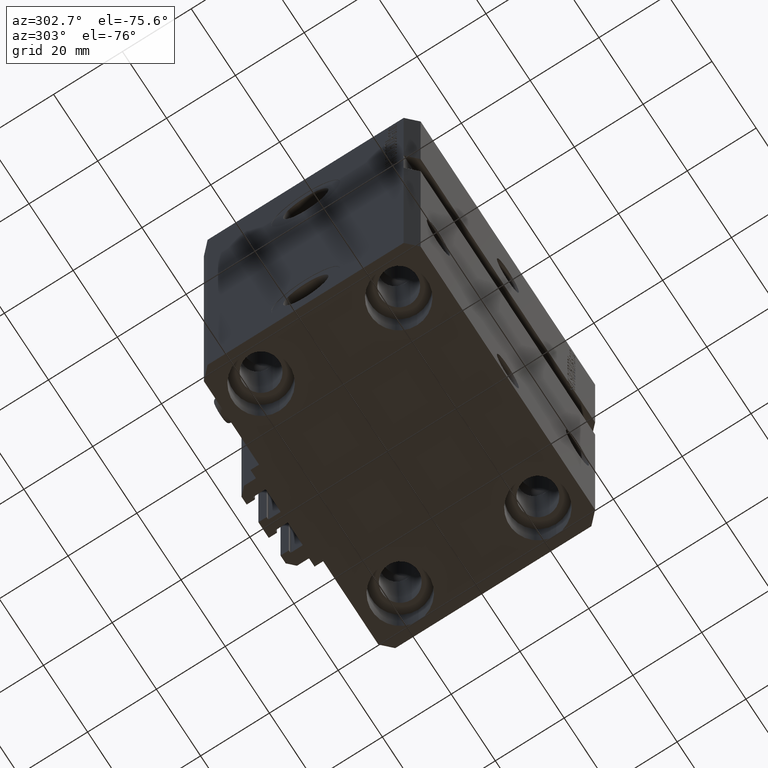
[diagram: clean part render]
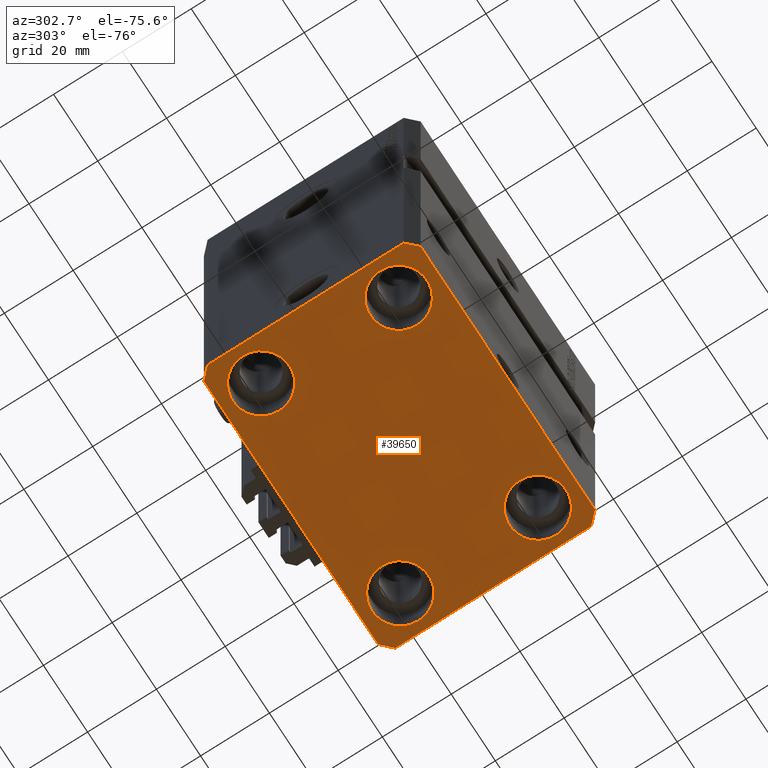
[diagram: same view with one face highlighted and labeled with its STEP entity id]
A machine part, auxiliary view. The second image highlights one B-rep face of the part: STEP entity #39650.
In plain terms, the highlighted planar face has unit normal (0, 0, 1).
Its self-contained STEP definition (entity closure, byte-faithful):
#447 = VECTOR ( 'NONE', #37838, 1000.000000000000000 ) ;
#583 = ORIENTED_EDGE ( 'NONE', *, *, #2229, .F. ) ;
#612 = DIRECTION ( 'NONE',  ( -0.000000000000000000, -0.000000000000000000, 1.000000000000000000 ) ) ;
#744 = VERTEX_POINT ( 'NONE', #1247 ) ;
#1247 = CARTESIAN_POINT ( 'NONE',  ( -42.50000000000000000, -28.50000000000000000, -123.0000000000000000 ) ) ;
#1713 = ORIENTED_EDGE ( 'NONE', *, *, #1865, .T. ) ;
#1761 = ORIENTED_EDGE ( 'NONE', *, *, #25248, .F. ) ;
#1865 = EDGE_CURVE ( 'NONE', #40088, #31894, #33535, .T. ) ;
#2154 = LINE ( 'NONE', #42493, #6009 ) ;
#2229 = EDGE_CURVE ( 'NONE', #744, #43945, #18669, .T. ) ;
#2271 = DIRECTION ( 'NONE',  ( -0.000000000000000000, -0.000000000000000000, 1.000000000000000000 ) ) ;
#2488 = AXIS2_PLACEMENT_3D ( 'NONE', #37710, #18276, #45082 ) ;
#2510 = DIRECTION ( 'NONE',  ( -0.000000000000000000, -0.000000000000000000, 1.000000000000000000 ) ) ;
#2748 = EDGE_CURVE ( 'NONE', #21997, #41444, #3572, .T. ) ;
#2753 = DIRECTION ( 'NONE',  ( 1.000000000000000000, 0.000000000000000000, 0.000000000000000000 ) ) ;
#2792 = ORIENTED_EDGE ( 'NONE', *, *, #30398, .F. ) ;
#3343 = CARTESIAN_POINT ( 'NONE',  ( -39.50000000000000711, -31.50000000000000000, -123.0000000000000000 ) ) ;
#3360 = CARTESIAN_POINT ( 'NONE',  ( 0.000000000000000000, 0.000000000000000000, -123.0000000000000000 ) ) ;
#3511 = VERTEX_POINT ( 'NONE', #33630 ) ;
#3572 = CIRCLE ( 'NONE', #31089, 8.250000000000000000 ) ;
#4649 = ORIENTED_EDGE ( 'NONE', *, *, #15829, .F. ) ;
#5157 = FACE_BOUND ( 'NONE', #36359, .T. ) ;
#5327 = CARTESIAN_POINT ( 'NONE',  ( -42.50000000000000000, 28.50000000000000000, -123.0000000000000000 ) ) ;
#6009 = VECTOR ( 'NONE', #46451, 1000.000000000000000 ) ;
#6119 = CARTESIAN_POINT ( 'NONE',  ( 39.50000000000000711, -31.50000000000000000, -123.0000000000000000 ) ) ;
#6680 = CARTESIAN_POINT ( 'NONE',  ( -31.50000000000000000, -20.00000000000000000, -123.0000000000000000 ) ) ;
#6723 = EDGE_CURVE ( 'NONE', #15120, #744, #33016, .T. ) ;
#6790 = EDGE_CURVE ( 'NONE', #30731, #43257, #7271, .T. ) ;
#7197 = CIRCLE ( 'NONE', #2488, 8.249999999999992895 ) ;
#7271 = CIRCLE ( 'NONE', #41009, 8.250000000000000000 ) ;
#7468 = VERTEX_POINT ( 'NONE', #17564 ) ;
#8027 = EDGE_LOOP ( 'NONE', ( #1761, #2792, #4649, #20803, #18089, #583, #42152, #19163 ) ) ;
#8380 = AXIS2_PLACEMENT_3D ( 'NONE', #41755, #23057, #30693 ) ;
#8715 = CARTESIAN_POINT ( 'NONE',  ( 31.50000000000000000, -20.00000000000000000, -123.0000000000000000 ) ) ;
#9369 = CARTESIAN_POINT ( 'NONE',  ( -39.75000000000000000, -20.00000000000000000, -123.0000000000000000 ) ) ;
#9392 = CARTESIAN_POINT ( 'NONE',  ( 42.50000000000000711, -28.50000000000000355, -123.0000000000000000 ) ) ;
#9821 = DIRECTION ( 'NONE',  ( 0.000000000000000000, 0.000000000000000000, 1.000000000000000000 ) ) ;
#10693 = DIRECTION ( 'NONE',  ( -0.000000000000000000, -0.000000000000000000, 1.000000000000000000 ) ) ;
#11230 = FACE_BOUND ( 'NONE', #14252, .T. ) ;
#11838 = EDGE_CURVE ( 'NONE', #31894, #40088, #23107, .T. ) ;
#12142 = CARTESIAN_POINT ( 'NONE',  ( 39.50000000000056843, 31.50000000000000000, -123.0000000000000000 ) ) ;
#12384 = AXIS2_PLACEMENT_3D ( 'NONE', #36525, #10693, #14152 ) ;
#13348 = ORIENTED_EDGE ( 'NONE', *, *, #6790, .T. ) ;
#13473 = CIRCLE ( 'NONE', #37077, 8.249999999999992895 ) ;
#14152 = DIRECTION ( 'NONE',  ( 1.000000000000000000, 0.000000000000000000, 0.000000000000000000 ) ) ;
#14252 = EDGE_LOOP ( 'NONE', ( #28151, #36301 ) ) ;
#15120 = VERTEX_POINT ( 'NONE', #5327 ) ;
#15370 = LINE ( 'NONE', #38478, #44743 ) ;
#15408 = VERTEX_POINT ( 'NONE', #23467 ) ;
#15829 = EDGE_CURVE ( 'NONE', #22923, #34228, #18897, .T. ) ;
#16722 = FACE_BOUND ( 'NONE', #41531, .T. ) ;
#17336 = CARTESIAN_POINT ( 'NONE',  ( -39.75000000000000000, 20.00000000000000000, -123.0000000000000000 ) ) ;
#17487 = CARTESIAN_POINT ( 'NONE',  ( 23.25000000000000355, -20.00000000000000000, -123.0000000000000000 ) ) ;
#17564 = CARTESIAN_POINT ( 'NONE',  ( -39.50000000000000711, 31.50000000000000000, -123.0000000000000000 ) ) ;
#18089 = ORIENTED_EDGE ( 'NONE', *, *, #20457, .F. ) ;
#18276 = DIRECTION ( 'NONE',  ( -0.000000000000000000, -0.000000000000000000, 1.000000000000000000 ) ) ;
#18599 = AXIS2_PLACEMENT_3D ( 'NONE', #38597, #42018, #31210 ) ;
#18669 = LINE ( 'NONE', #48687, #27110 ) ;
#18897 = LINE ( 'NONE', #33903, #447 ) ;
#19163 = ORIENTED_EDGE ( 'NONE', *, *, #30468, .F. ) ;
#19200 = VERTEX_POINT ( 'NONE', #37355 ) ;
#20457 = EDGE_CURVE ( 'NONE', #43945, #15408, #2154, .T. ) ;
#20803 = ORIENTED_EDGE ( 'NONE', *, *, #39104, .F. ) ;
#20948 = ORIENTED_EDGE ( 'NONE', *, *, #32602, .T. ) ;
#20977 = CARTESIAN_POINT ( 'NONE',  ( -39.50000000000000711, 31.50000000000000000, -123.0000000000000000 ) ) ;
#21436 = CARTESIAN_POINT ( 'NONE',  ( -31.50000000000000000, 20.00000000000000000, -123.0000000000000000 ) ) ;
#21997 = VERTEX_POINT ( 'NONE', #17336 ) ;
#22039 = DIRECTION ( 'NONE',  ( 1.000000000000000000, 0.000000000000000000, -0.000000000000000000 ) ) ;
#22441 = DIRECTION ( 'NONE',  ( -0.000000000000000000, -0.000000000000000000, 1.000000000000000000 ) ) ;
#22923 = VERTEX_POINT ( 'NONE', #9392 ) ;
#23057 = DIRECTION ( 'NONE',  ( -0.000000000000000000, -0.000000000000000000, 1.000000000000000000 ) ) ;
#23107 = CIRCLE ( 'NONE', #24696, 8.249999999999992895 ) ;
#23467 = CARTESIAN_POINT ( 'NONE',  ( 39.50000000000000711, -31.50000000000000000, -123.0000000000000000 ) ) ;
#23516 = CARTESIAN_POINT ( 'NONE',  ( -23.25000000000000000, -20.00000000000000000, -123.0000000000000000 ) ) ;
#24696 = AXIS2_PLACEMENT_3D ( 'NONE', #34240, #22441, #33775 ) ;
#24808 = LINE ( 'NONE', #6119, #40760 ) ;
#25248 = EDGE_CURVE ( 'NONE', #3511, #7468, #29890, .T. ) ;
#25820 = VECTOR ( 'NONE', #27140, 1000.000000000000000 ) ;
#25838 = ORIENTED_EDGE ( 'NONE', *, *, #11838, .T. ) ;
#26294 = DIRECTION ( 'NONE',  ( 0.7071067811865471286, -0.7071067811865479058, 0.000000000000000000 ) ) ;
#26921 = DIRECTION ( 'NONE',  ( -0.7071067811865356934, 0.7071067811865594521, 0.000000000000000000 ) ) ;
#27110 = VECTOR ( 'NONE', #26294, 1000.000000000000000 ) ;
#27140 = DIRECTION ( 'NONE',  ( -1.000000000000000000, 0.000000000000000000, 0.000000000000000000 ) ) ;
#27238 = CIRCLE ( 'NONE', #8380, 8.250000000000000000 ) ;
#28151 = ORIENTED_EDGE ( 'NONE', *, *, #2748, .T. ) ;
#28605 = LINE ( 'NONE', #20977, #40810 ) ;
#29890 = LINE ( 'NONE', #12142, #25820 ) ;
#30027 = VECTOR ( 'NONE', #36691, 1000.000000000000000 ) ;
#30398 = EDGE_CURVE ( 'NONE', #34228, #3511, #15370, .T. ) ;
#30468 = EDGE_CURVE ( 'NONE', #7468, #15120, #28605, .T. ) ;
#30693 = DIRECTION ( 'NONE',  ( 1.000000000000000000, 0.000000000000000000, 0.000000000000000000 ) ) ;
#30731 = VERTEX_POINT ( 'NONE', #9369 ) ;
#31089 = AXIS2_PLACEMENT_3D ( 'NONE', #21436, #2271, #2753 ) ;
#31210 = DIRECTION ( 'NONE',  ( 1.000000000000000000, 0.000000000000000000, 0.000000000000000000 ) ) ;
#31234 = ORIENTED_EDGE ( 'NONE', *, *, #36425, .T. ) ;
#31796 = CARTESIAN_POINT ( 'NONE',  ( 39.74999999999999289, 20.00000000000001066, -123.0000000000000000 ) ) ;
#31894 = VERTEX_POINT ( 'NONE', #42760 ) ;
#32602 = EDGE_CURVE ( 'NONE', #47506, #19200, #13473, .T. ) ;
#32770 = EDGE_CURVE ( 'NONE', #19200, #47506, #7197, .T. ) ;
#33016 = LINE ( 'NONE', #36940, #30027 ) ;
#33535 = CIRCLE ( 'NONE', #18599, 8.249999999999992895 ) ;
#33613 = CIRCLE ( 'NONE', #12384, 8.250000000000000000 ) ;
#33630 = CARTESIAN_POINT ( 'NONE',  ( 39.50000000000056843, 31.50000000000000000, -123.0000000000000000 ) ) ;
#33775 = DIRECTION ( 'NONE',  ( 1.000000000000000000, 0.000000000000000000, 0.000000000000000000 ) ) ;
#33903 = CARTESIAN_POINT ( 'NONE',  ( 42.50000000000000711, -28.50000000000000355, -123.0000000000000000 ) ) ;
#34201 = EDGE_CURVE ( 'NONE', #41444, #21997, #27238, .T. ) ;
#34228 = VERTEX_POINT ( 'NONE', #34627 ) ;
#34240 = CARTESIAN_POINT ( 'NONE',  ( 31.50000000000000000, 20.00000000000001066, -123.0000000000000000 ) ) ;
#34627 = CARTESIAN_POINT ( 'NONE',  ( 42.50000000000051870, 28.49999999999995381, -123.0000000000000000 ) ) ;
#36301 = ORIENTED_EDGE ( 'NONE', *, *, #34201, .T. ) ;
#36359 = EDGE_LOOP ( 'NONE', ( #13348, #31234 ) ) ;
#36425 = EDGE_CURVE ( 'NONE', #43257, #30731, #33613, .T. ) ;
#36525 = CARTESIAN_POINT ( 'NONE',  ( -31.50000000000000000, -20.00000000000000000, -123.0000000000000000 ) ) ;
#36691 = DIRECTION ( 'NONE',  ( 0.000000000000000000, -1.000000000000000000, 0.000000000000000000 ) ) ;
#36940 = CARTESIAN_POINT ( 'NONE',  ( -42.50000000000000000, 28.50000000000000000, -123.0000000000000000 ) ) ;
#37058 = FACE_OUTER_BOUND ( 'NONE', #8027, .T. ) ;
#37077 = AXIS2_PLACEMENT_3D ( 'NONE', #8715, #612, #42881 ) ;
#37355 = CARTESIAN_POINT ( 'NONE',  ( 39.74999999999999289, -20.00000000000000000, -123.0000000000000000 ) ) ;
#37710 = CARTESIAN_POINT ( 'NONE',  ( 31.50000000000000000, -20.00000000000000000, -123.0000000000000000 ) ) ;
#37838 = DIRECTION ( 'NONE',  ( 8.886653596232072440E-15, 1.000000000000000000, 0.000000000000000000 ) ) ;
#38478 = CARTESIAN_POINT ( 'NONE',  ( 42.50000000000051870, 28.49999999999995381, -123.0000000000000000 ) ) ;
#38597 = CARTESIAN_POINT ( 'NONE',  ( 31.50000000000000000, 20.00000000000001066, -123.0000000000000000 ) ) ;
#39104 = EDGE_CURVE ( 'NONE', #15408, #22923, #24808, .T. ) ;
#39641 = DIRECTION ( 'NONE',  ( 1.000000000000000000, 0.000000000000000000, 0.000000000000000000 ) ) ;
#39650 = ADVANCED_FACE ( 'NONE', ( #5157, #16722, #44422, #11230, #37058 ), #41224, .F. ) ;
#40088 = VERTEX_POINT ( 'NONE', #31796 ) ;
#40760 = VECTOR ( 'NONE', #42926, 1000.000000000000000 ) ;
#40810 = VECTOR ( 'NONE', #47549, 1000.000000000000000 ) ;
#41009 = AXIS2_PLACEMENT_3D ( 'NONE', #6680, #2510, #39641 ) ;
#41224 = PLANE ( 'NONE',  #48640 ) ;
#41444 = VERTEX_POINT ( 'NONE', #47235 ) ;
#41531 = EDGE_LOOP ( 'NONE', ( #20948, #46320 ) ) ;
#41755 = CARTESIAN_POINT ( 'NONE',  ( -31.50000000000000000, 20.00000000000000000, -123.0000000000000000 ) ) ;
#42018 = DIRECTION ( 'NONE',  ( -0.000000000000000000, -0.000000000000000000, 1.000000000000000000 ) ) ;
#42152 = ORIENTED_EDGE ( 'NONE', *, *, #6723, .F. ) ;
#42493 = CARTESIAN_POINT ( 'NONE',  ( -39.50000000000000711, -31.50000000000000000, -123.0000000000000000 ) ) ;
#42760 = CARTESIAN_POINT ( 'NONE',  ( 23.25000000000000355, 20.00000000000001066, -123.0000000000000000 ) ) ;
#42881 = DIRECTION ( 'NONE',  ( 1.000000000000000000, 0.000000000000000000, 0.000000000000000000 ) ) ;
#42926 = DIRECTION ( 'NONE',  ( 0.7071067811865483499, 0.7071067811865466846, 0.000000000000000000 ) ) ;
#43257 = VERTEX_POINT ( 'NONE', #23516 ) ;
#43945 = VERTEX_POINT ( 'NONE', #3343 ) ;
#44422 = FACE_BOUND ( 'NONE', #46671, .T. ) ;
#44743 = VECTOR ( 'NONE', #26921, 1000.000000000000114 ) ;
#45082 = DIRECTION ( 'NONE',  ( 1.000000000000000000, 0.000000000000000000, 0.000000000000000000 ) ) ;
#46320 = ORIENTED_EDGE ( 'NONE', *, *, #32770, .T. ) ;
#46451 = DIRECTION ( 'NONE',  ( 1.000000000000000000, 0.000000000000000000, 0.000000000000000000 ) ) ;
#46671 = EDGE_LOOP ( 'NONE', ( #25838, #1713 ) ) ;
#47235 = CARTESIAN_POINT ( 'NONE',  ( -23.25000000000000000, 20.00000000000000000, -123.0000000000000000 ) ) ;
#47506 = VERTEX_POINT ( 'NONE', #17487 ) ;
#47549 = DIRECTION ( 'NONE',  ( -0.7071067811865471286, -0.7071067811865479058, 0.000000000000000000 ) ) ;
#48640 = AXIS2_PLACEMENT_3D ( 'NONE', #3360, #9821, #22039 ) ;
#48687 = CARTESIAN_POINT ( 'NONE',  ( -42.50000000000000000, -28.50000000000000000, -123.0000000000000000 ) ) ;